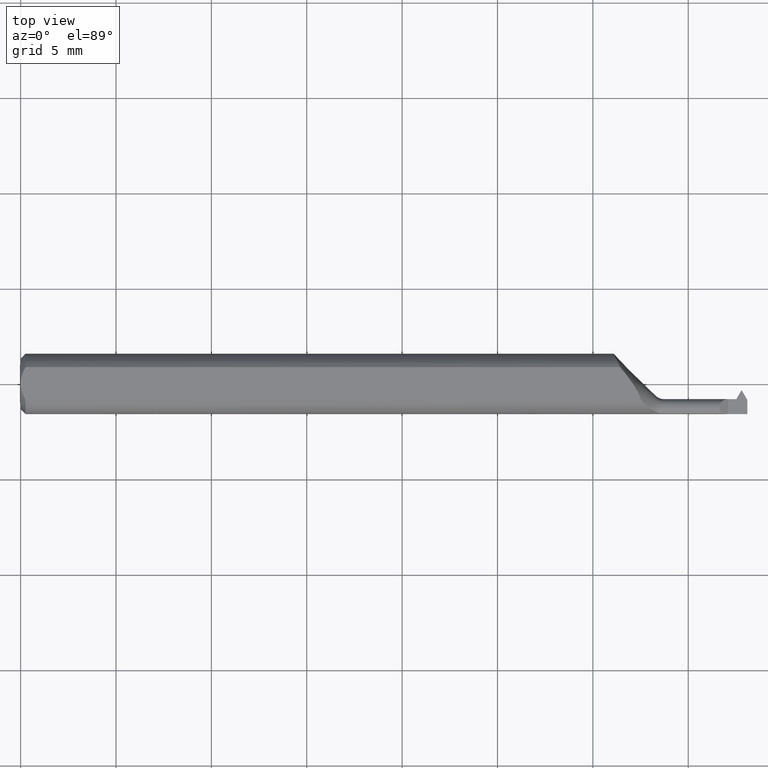
[diagram: clean part render]
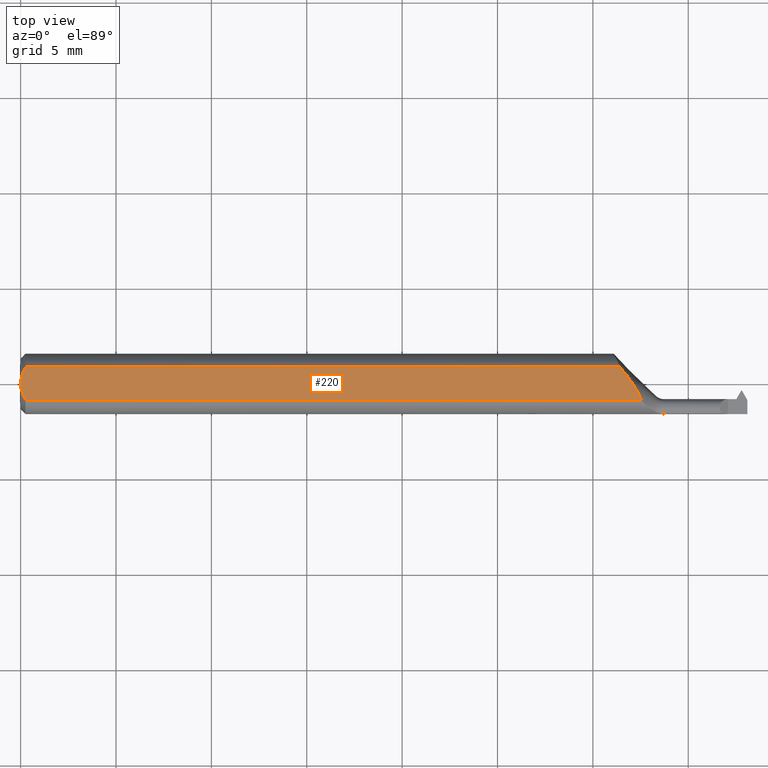
[diagram: same view with one face highlighted and labeled with its STEP entity id]
A machine part, top view. The second image highlights one B-rep face of the part: STEP entity #220.
In plain terms, the highlighted planar face has unit normal (0, 0, 1).
Its self-contained STEP definition (entity closure, byte-faithful):
#5 = CARTESIAN_POINT ( 'NONE',  ( 0.007163450771350382031, -0.02864528976618618133, 0.05234999999999997294 ) ) ;
#32 = ORIENTED_EDGE ( 'NONE', *, *, #422, .F. ) ;
#36 = LINE ( 'NONE', #112, #115 ) ;
#112 = CARTESIAN_POINT ( 'NONE',  ( 0.000000000000000000, -0.03386738844375224849, 0.05234999999999997294 ) ) ;
#115 = VECTOR ( 'NONE', #397, 39.37007874015748143 ) ;
#133 = EDGE_CURVE ( 'NONE', #686, #228, #36, .T. ) ;
#135 = ORIENTED_EDGE ( 'NONE', *, *, #675, .T. ) ;
#138 = VERTEX_POINT ( 'NONE', #623 ) ;
#146 = VECTOR ( 'NONE', #376, 39.37007874015748143 ) ;
#151 = CARTESIAN_POINT ( 'NONE',  ( 1.237253451677763127, 0.03386738844375224849, 0.05234999999999997294 ) ) ;
#189 = CARTESIAN_POINT ( 'NONE',  ( 0.009999999999999887451, 0.03386738844375224849, 0.05234999999999997294 ) ) ;
#193 = B_SPLINE_CURVE_WITH_KNOTS ( 'NONE', 3,
 ( #863, #200, #480, #780, #636, #189 ),
 .UNSPECIFIED., .F., .F.,
 ( 4, 2, 4 ),
 ( 0.003093386807937206339, 0.003544501666246027347, 0.003995616524554848788 ),
 .UNSPECIFIED. ) ;
#200 = CARTESIAN_POINT ( 'NONE',  ( -1.133440131013889109E-15, 0.005954997531774002505, 0.05234999999999997294 ) ) ;
#220 = ADVANCED_FACE ( 'NONE', ( #637 ), #558, .T. ) ;
#222 = CARTESIAN_POINT ( 'NONE',  ( 1.265940729725909986, -0.003415696435723348211, 0.05234999999999997294 ) ) ;
#228 = VERTEX_POINT ( 'NONE', #699 ) ;
#255 = AXIS2_PLACEMENT_3D ( 'NONE', #938, #771, #702 ) ;
#366 = B_SPLINE_CURVE_WITH_KNOTS ( 'NONE', 3,
 ( #583, #737, #881, #648, #222, #658, #511, #151 ),
 .UNSPECIFIED., .F., .F.,
 ( 4, 2, 2, 4 ),
 ( 0.001782749369705201271, 0.002291746602842737422, 0.002800743835980273357, 0.003818738302255333950 ),
 .UNSPECIFIED. ) ;
#376 = DIRECTION ( 'NONE',  ( -1.000000000000000000, -0.000000000000000000, -0.000000000000000000 ) ) ;
#397 = DIRECTION ( 'NONE',  ( 1.000000000000000000, 0.000000000000000000, 0.000000000000000000 ) ) ;
#422 = EDGE_CURVE ( 'NONE', #686, #440, #948, .T. ) ;
#432 = CARTESIAN_POINT ( 'NONE',  ( 0.000000000000000000, 0.03386738844375224849, 0.05234999999999997294 ) ) ;
#440 = VERTEX_POINT ( 'NONE', #877 ) ;
#443 = ORIENTED_EDGE ( 'NONE', *, *, #133, .T. ) ;
#480 = CARTESIAN_POINT ( 'NONE',  ( 0.001063697276021325104, 0.01189177144351695990, 0.05234999999999997988 ) ) ;
#511 = CARTESIAN_POINT ( 'NONE',  ( 1.245943991857031419, 0.02358264054126600964, 0.05234999999999997294 ) ) ;
#523 = CARTESIAN_POINT ( 'NONE',  ( 0.009999999999999887451, 0.03386738844375224849, 0.05234999999999997294 ) ) ;
#558 = PLANE ( 'NONE',  #255 ) ;
#580 = CARTESIAN_POINT ( 'NONE',  ( 0.000000000000000000, 0.000000000000000000, 0.05234999999999997294 ) ) ;
#583 = CARTESIAN_POINT ( 'NONE',  ( 1.280692836829395720, -0.03386738844375222768, 0.05234999999999997294 ) ) ;
#591 = LINE ( 'NONE', #432, #146 ) ;
#602 = EDGE_LOOP ( 'NONE', ( #443, #798, #135, #824, #32 ) ) ;
#623 = CARTESIAN_POINT ( 'NONE',  ( 1.237253451677763127, 0.03386738844375224849, 0.05234999999999997294 ) ) ;
#631 = EDGE_CURVE ( 'NONE', #228, #138, #366, .T. ) ;
#636 = CARTESIAN_POINT ( 'NONE',  ( 0.007185421074056196067, 0.02868573718286566293, 0.05234999999999997294 ) ) ;
#637 = FACE_OUTER_BOUND ( 'NONE', #602, .T. ) ;
#648 = CARTESIAN_POINT ( 'NONE',  ( 1.269590123793895797, -0.009075655482202498597, 0.05235000000000000070 ) ) ;
#658 = CARTESIAN_POINT ( 'NONE',  ( 1.254403652722808404, 0.01312616709034404236, 0.05234999999999996600 ) ) ;
#668 = CARTESIAN_POINT ( 'NONE',  ( 0.001055043921632921322, -0.01186408073210964975, 0.05234999999999997988 ) ) ;
#675 = EDGE_CURVE ( 'NONE', #138, #677, #591, .T. ) ;
#677 = VERTEX_POINT ( 'NONE', #523 ) ;
#686 = VERTEX_POINT ( 'NONE', #890 ) ;
#699 = CARTESIAN_POINT ( 'NONE',  ( 1.280692836829395720, -0.03386738844375222768, 0.05234999999999997294 ) ) ;
#702 = DIRECTION ( 'NONE',  ( 1.000000000000000000, 0.000000000000000000, -0.000000000000000000 ) ) ;
#737 = CARTESIAN_POINT ( 'NONE',  ( 1.278887346580172224, -0.02730563269667979007, 0.05234999999999997988 ) ) ;
#771 = DIRECTION ( 'NONE',  ( 0.000000000000000000, 0.000000000000000000, 1.000000000000000000 ) ) ;
#780 = CARTESIAN_POINT ( 'NONE',  ( 0.004671770759546750584, 0.02323517832780109052, 0.05234999999999998682 ) ) ;
#798 = ORIENTED_EDGE ( 'NONE', *, *, #631, .T. ) ;
#809 = CARTESIAN_POINT ( 'NONE',  ( 0.009999999999999887451, -0.03386738844375224849, 0.05234999999999997294 ) ) ;
#824 = ORIENTED_EDGE ( 'NONE', *, *, #871, .F. ) ;
#863 = CARTESIAN_POINT ( 'NONE',  ( 0.000000000000000000, 0.000000000000000000, 0.05234999999999997294 ) ) ;
#871 = EDGE_CURVE ( 'NONE', #440, #677, #193, .T. ) ;
#877 = CARTESIAN_POINT ( 'NONE',  ( 0.000000000000000000, 0.000000000000000000, 0.05234999999999997294 ) ) ;
#881 = CARTESIAN_POINT ( 'NONE',  ( 1.276064074130062398, -0.02100907905298084188, 0.05234999999999997294 ) ) ;
#883 = CARTESIAN_POINT ( 'NONE',  ( 0.004679365186780987812, -0.02325953974079660730, 0.05234999999999997988 ) ) ;
#890 = CARTESIAN_POINT ( 'NONE',  ( 0.009999999999999887451, -0.03386738844375224849, 0.05234999999999997294 ) ) ;
#892 = CARTESIAN_POINT ( 'NONE',  ( -1.104610997828796865E-15, -0.005965286321680308458, 0.05234999999999996600 ) ) ;
#938 = CARTESIAN_POINT ( 'NONE',  ( 1.630958352158234037, 0.06235000000000000264, 0.05234999999999997294 ) ) ;
#948 = B_SPLINE_CURVE_WITH_KNOTS ( 'NONE', 3,
 ( #809, #5, #883, #668, #892, #580 ),
 .UNSPECIFIED., .F., .F.,
 ( 4, 2, 4 ),
 ( 0.002189598257423874383, 0.002641492532680540361, 0.003093386807937206339 ),
 .UNSPECIFIED. ) ;